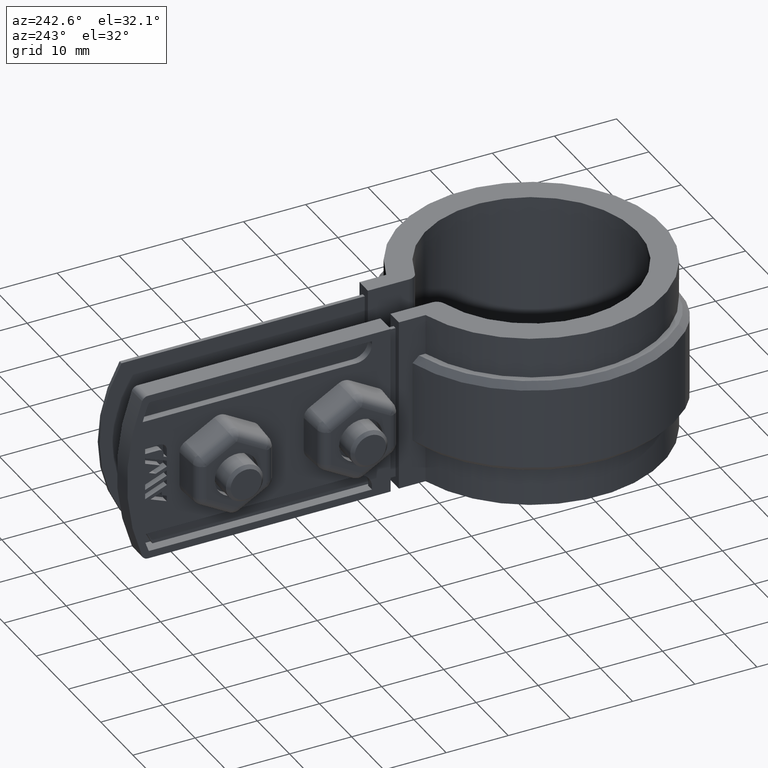
[diagram: clean part render]
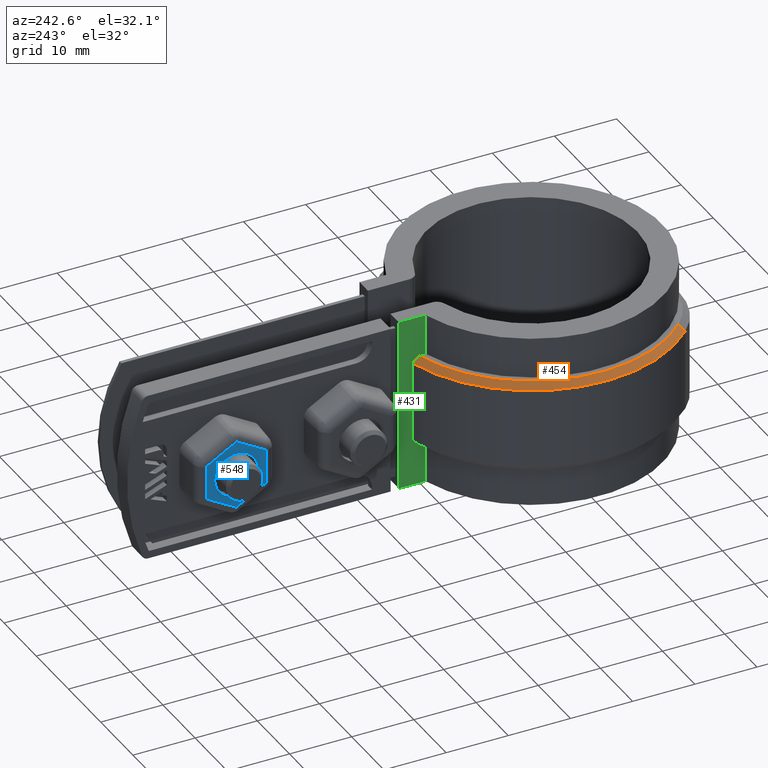
[diagram: same view with three faces highlighted in distinct colors, each labeled with its STEP entity id]
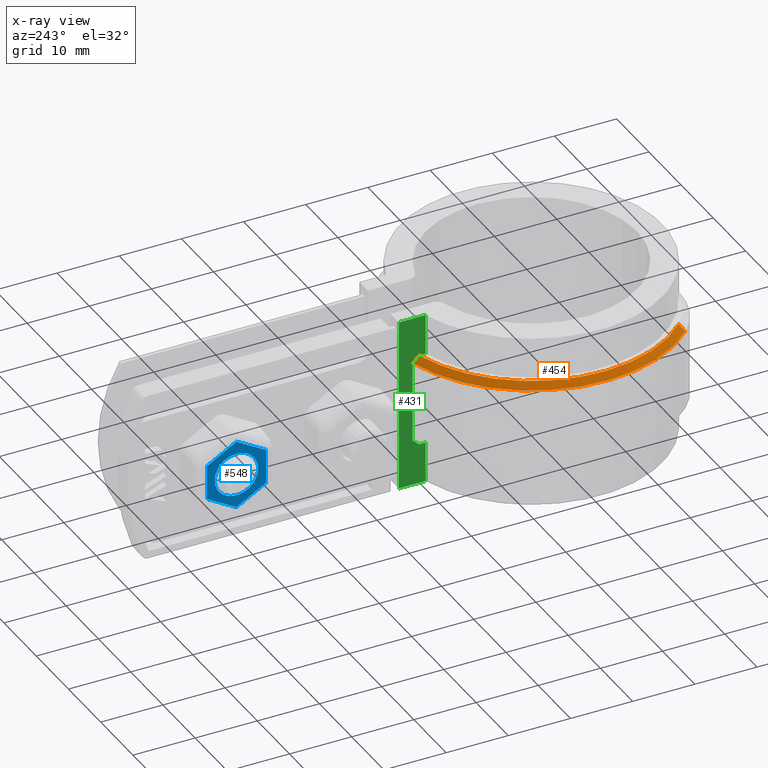
[diagram: x-ray of the same camera — body ghosted, the three highlighted faces saturated]
A machine part, auxiliary view with three faces highlighted in distinct colors.
The next image is the same camera in x-ray (body ghosted, the three faces saturated) — at least one of them is partly hidden behind the body in this view.
Their STEP definitions:

[orange] entity #454 — the highlighted conical surface has half-angle 45 deg.
#454 = ADVANCED_FACE( '', ( #903 ), #904, .T. );
#903 = FACE_OUTER_BOUND( '', #1931, .T. );
#904 = CONICAL_SURFACE( '', #1932, 22.0950000000000, 0.785398163397447 );
#1931 = EDGE_LOOP( '', ( #4328, #4329, #4330, #4331 ) );
#1932 = AXIS2_PLACEMENT_3D( '', #4332, #4333, #4334 );
#4328 = ORIENTED_EDGE( '', *, *, #6849, .F. );
#4329 = ORIENTED_EDGE( '', *, *, #6914, .F. );
#4330 = ORIENTED_EDGE( '', *, *, #6915, .F. );
#4331 = ORIENTED_EDGE( '', *, *, #6885, .F. );
#4332 = CARTESIAN_POINT( '', ( -8.67361737988404E-016, -6.93889390390723E-015, -5.00000000000000 ) );
#4333 = DIRECTION( '', ( 0.000000000000000, 0.000000000000000, -1.00000000000000 ) );
#4334 = DIRECTION( '', ( -1.00000000000000, 0.000000000000000, 0.000000000000000 ) );
#6849 = EDGE_CURVE( '', #7969, #7971, #7972, .F. );
#6885 = EDGE_CURVE( '', #7971, #8028, #8029, .F. );
#6914 = EDGE_CURVE( '', #7813, #7969, #8072, .T. );
#6915 = EDGE_CURVE( '', #8028, #7813, #8073, .T. );
#7813 = VERTEX_POINT( '', #10352 );
#7969 = VERTEX_POINT( '', #10809 );
#7971 = VERTEX_POINT( '', #10812 );
#7972 = B_SPLINE_CURVE_WITH_KNOTS( '', 3, ( #10813, #10814, #10815, #10816 ), .UNSPECIFIED., .F., .F., ( 4, 4 ), ( 707.130334014855, 707.131788933458 ), .UNSPECIFIED. );
#8028 = VERTEX_POINT( '', #10928 );
#8029 = CIRCLE( '', #10929, 22.0950000000000 );
#8072 = CIRCLE( '', #11145, 23.0950000000000 );
#8073 = LINE( '', #11146, #11147 );
#10352 = CARTESIAN_POINT( '', ( -16.4128629004502, -16.2479831490258, -6.00000000000000 ) );
#10809 = CARTESIAN_POINT( '', ( -6.10000000000003, 22.2748518513592, -6.00000000000000 ) );
#10812 = CARTESIAN_POINT( '', ( -6.10000000000003, 21.2362667387655, -5.00000000000000 ) );
#10813 = CARTESIAN_POINT( '', ( -6.10000000000003, 21.2362667387879, -5.00000000002154 ) );
#10814 = CARTESIAN_POINT( '', ( -6.10000000000003, 21.5827481550321, -5.33301524217526 ) );
#10815 = CARTESIAN_POINT( '', ( -6.10000000000003, 21.9289303497824, -5.66636284044930 ) );
#10816 = CARTESIAN_POINT( '', ( -6.10000000000003, 22.2748518513817, -6.00000000002171 ) );
#10928 = CARTESIAN_POINT( '', ( -15.7021955308702, -15.5444549763033, -5.00000000000000 ) );
#10929 = AXIS2_PLACEMENT_3D( '', #13076, #13077, #13078 );
#11145 = AXIS2_PLACEMENT_3D( '', #13106, #13107, #13108 );
#11146 = CARTESIAN_POINT( '', ( -15.7021955308702, -15.5444549763033, -5.00000000000000 ) );
#11147 = VECTOR( '', #13109, 1000.00000000000 );
#13076 = CARTESIAN_POINT( '', ( -8.67361737988404E-016, -6.93889390390723E-015, -5.00000000000000 ) );
#13077 = DIRECTION( '', ( 0.000000000000000, 0.000000000000000, -1.00000000000000 ) );
#13078 = DIRECTION( '', ( -1.00000000000000, 0.000000000000000, 0.000000000000000 ) );
#13106 = CARTESIAN_POINT( '', ( -8.67361737988404E-016, -6.93889390390723E-015, -6.00000000000000 ) );
#13107 = DIRECTION( '', ( 0.000000000000000, 0.000000000000000, -1.00000000000000 ) );
#13108 = DIRECTION( '', ( -1.00000000000000, 0.000000000000000, 0.000000000000000 ) );
#13109 = DIRECTION( '', ( -0.502517716198026, -0.497469541687849, -0.707106781186549 ) );

[blue] entity #548 — the highlighted planar face has unit normal (-1, -0, 0).
#548 = ADVANCED_FACE( '', ( #1109, #1110 ), #1111, .T. );
#1109 = FACE_OUTER_BOUND( '', #2365, .T. );
#1110 = FACE_BOUND( '', #2366, .T. );
#1111 = PLANE( '', #2367 );
#2365 = EDGE_LOOP( '', ( #5449, #5450, #5451, #5452, #5453, #5454, #5455, #5456, #5457, #5458, #5459, #5460 ) );
#2366 = EDGE_LOOP( '', ( #5461 ) );
#2367 = AXIS2_PLACEMENT_3D( '', #5462, #5463, #5464 );
#5449 = ORIENTED_EDGE( '', *, *, #7269, .T. );
#5450 = ORIENTED_EDGE( '', *, *, #7270, .T. );
#5451 = ORIENTED_EDGE( '', *, *, #7160, .T. );
#5452 = ORIENTED_EDGE( '', *, *, #7213, .T. );
#5453 = ORIENTED_EDGE( '', *, *, #7271, .T. );
#5454 = ORIENTED_EDGE( '', *, *, #7192, .T. );
#5455 = ORIENTED_EDGE( '', *, *, #7272, .T. );
#5456 = ORIENTED_EDGE( '', *, *, #7273, .T. );
#5457 = ORIENTED_EDGE( '', *, *, #7274, .T. );
#5458 = ORIENTED_EDGE( '', *, *, #7275, .T. );
#5459 = ORIENTED_EDGE( '', *, *, #7276, .T. );
#5460 = ORIENTED_EDGE( '', *, *, #7186, .T. );
#5461 = ORIENTED_EDGE( '', *, *, #7277, .T. );
#5462 = CARTESIAN_POINT( '', ( -11.9000000000000, 58.3043584449256, -15.2135462651899 ) );
#5463 = DIRECTION( '', ( -1.00000000000000, -5.21622357984566E-016, 4.64857589325129E-017 ) );
#5464 = DIRECTION( '', ( -5.21622357984566E-016, 1.00000000000000, 0.000000000000000 ) );
#7160 = EDGE_CURVE( '', #8520, #8518, #8521, .T. );
#7186 = EDGE_CURVE( '', #8550, #8555, #8557, .T. );
#7192 = EDGE_CURVE( '', #8565, #8563, #8566, .T. );
#7213 = EDGE_CURVE( '', #8518, #8594, #8596, .T. );
#7269 = EDGE_CURVE( '', #8555, #8683, #8684, .T. );
#7270 = EDGE_CURVE( '', #8683, #8520, #8685, .T. );
#7271 = EDGE_CURVE( '', #8594, #8565, #8686, .T. );
#7272 = EDGE_CURVE( '', #8563, #8687, #8688, .T. );
#7273 = EDGE_CURVE( '', #8687, #8689, #8690, .T. );
#7274 = EDGE_CURVE( '', #8689, #8691, #8692, .T. );
#7275 = EDGE_CURVE( '', #8691, #8693, #8694, .T. );
#7276 = EDGE_CURVE( '', #8693, #8550, #8695, .T. );
#7277 = EDGE_CURVE( '', #8696, #8696, #8697, .T. );
#8518 = VERTEX_POINT( '', #11894 );
#8520 = VERTEX_POINT( '', #11896 );
#8521 = CIRCLE( '', #11897, 0.0765531499276852 );
#8550 = VERTEX_POINT( '', #11943 );
#8555 = VERTEX_POINT( '', #11949 );
#8557 = LINE( '', #11951, #11952 );
#8563 = VERTEX_POINT( '', #11962 );
#8565 = VERTEX_POINT( '', #11964 );
#8566 = LINE( '', #11965, #11966 );
#8594 = VERTEX_POINT( '', #12007 );
#8596 = LINE( '', #12009, #12010 );
#8683 = VERTEX_POINT( '', #12134 );
#8684 = CIRCLE( '', #12135, 0.0765531499276742 );
#8685 = LINE( '', #12136, #12137 );
#8686 = CIRCLE( '', #12138, 0.0765531499276820 );
#8687 = VERTEX_POINT( '', #12139 );
#8688 = CIRCLE( '', #12140, 0.0765531499276767 );
#8689 = VERTEX_POINT( '', #12141 );
#8690 = LINE( '', #12142, #12143 );
#8691 = VERTEX_POINT( '', #12144 );
#8692 = CIRCLE( '', #12145, 0.0765531499276752 );
#8693 = VERTEX_POINT( '', #12146 );
#8694 = LINE( '', #12147, #12148 );
#8695 = CIRCLE( '', #12149, 0.0765531499276886 );
#8696 = VERTEX_POINT( '', #12150 );
#8697 = CIRCLE( '', #12151, 3.50000000000000 );
#11894 = CARTESIAN_POINT( '', ( -11.9000000000000, 48.8278052949980, -15.2135462651899 ) );
#11896 = CARTESIAN_POINT( '', ( -11.9000000000000, 48.8660818699618, -15.2798432377670 ) );
#11897 = AXIS2_PLACEMENT_3D( '', #13428, #13429, #13430 );
#11943 = CARTESIAN_POINT( '', ( -11.9000000000000, 58.3426350198895, -15.2798432377670 ) );
#11949 = CARTESIAN_POINT( '', ( -11.9000000000000, 53.6426350198895, -17.9933895029583 ) );
#11951 = CARTESIAN_POINT( '', ( -11.9000000000000, 58.3426350198895, -15.2798432377670 ) );
#11952 = VECTOR( '', #13470, 1000.00000000000 );
#11962 = CARTESIAN_POINT( '', ( -11.9000000000000, 53.5660818699618, -7.00661049703913 ) );
#11964 = CARTESIAN_POINT( '', ( -11.9000000000000, 48.8660818699618, -9.72015676223037 ) );
#11965 = CARTESIAN_POINT( '', ( -11.9000000000000, 53.5660818699618, -7.00661049703913 ) );
#11966 = VECTOR( '', #13478, 1000.00000000000 );
#12007 = CARTESIAN_POINT( '', ( -11.9000000000000, 48.8278052949980, -9.78645373480746 ) );
#12009 = CARTESIAN_POINT( '', ( -11.9000000000000, 48.8278052949980, -15.2135462651899 ) );
#12010 = VECTOR( '', #13513, 1000.00000000000 );
#12134 = CARTESIAN_POINT( '', ( -11.9000000000000, 53.5660818699618, -17.9933895029583 ) );
#12135 = AXIS2_PLACEMENT_3D( '', #13605, #13606, #13607 );
#12136 = CARTESIAN_POINT( '', ( -11.9000000000000, 55.9160818699618, -19.3501626355539 ) );
#12137 = VECTOR( '', #13608, 1000.00000000000 );
#12138 = AXIS2_PLACEMENT_3D( '', #13609, #13610, #13611 );
#12139 = CARTESIAN_POINT( '', ( -11.9000000000000, 53.6426350198895, -7.00661049703914 ) );
#12140 = AXIS2_PLACEMENT_3D( '', #13612, #13613, #13614 );
#12141 = CARTESIAN_POINT( '', ( -11.9000000000000, 58.3426350198895, -9.72015676223037 ) );
#12142 = CARTESIAN_POINT( '', ( -11.9000000000000, 60.6926350198895, -11.0769298948260 ) );
#12143 = VECTOR( '', #13615, 1000.00000000000 );
#12144 = CARTESIAN_POINT( '', ( -11.9000000000000, 58.3809115948533, -9.78645373480746 ) );
#12145 = AXIS2_PLACEMENT_3D( '', #13616, #13617, #13618 );
#12146 = CARTESIAN_POINT( '', ( -11.9000000000000, 58.3809115948533, -15.2135462651899 ) );
#12147 = CARTESIAN_POINT( '', ( -11.9000000000000, 58.3809115948533, -15.2135462651899 ) );
#12148 = VECTOR( '', #13619, 1000.00000000000 );
#12149 = AXIS2_PLACEMENT_3D( '', #13620, #13621, #13622 );
#12150 = CARTESIAN_POINT( '', ( -11.9000000000000, 50.1043584449256, -12.4999999999987 ) );
#12151 = AXIS2_PLACEMENT_3D( '', #13623, #13624, #13625 );
#13428 = CARTESIAN_POINT( '', ( -11.9000000000000, 48.9043584449256, -15.2135462651899 ) );
#13429 = DIRECTION( '', ( -1.00000000000000, -5.21622357984566E-016, 4.64857589325129E-017 ) );
#13430 = DIRECTION( '', ( 5.21622357984566E-016, -1.00000000000000, 0.000000000000000 ) );
#13470 = DIRECTION( '', ( 4.28495333730318E-016, -0.866025403784439, -0.500000000000000 ) );
#13478 = DIRECTION( '', ( -4.28495333730318E-016, 0.866025403784439, 0.500000000000000 ) );
#13513 = DIRECTION( '', ( 4.64857589325129E-017, -5.79473666251976E-017, 1.00000000000000 ) );
#13605 = CARTESIAN_POINT( '', ( -11.9000000000000, 53.6043584449256, -17.9270925303812 ) );
#13606 = DIRECTION( '', ( -1.00000000000000, -5.21622357984566E-016, 4.64857589325129E-017 ) );
#13607 = DIRECTION( '', ( 5.21622357984566E-016, -1.00000000000000, 0.000000000000000 ) );
#13608 = DIRECTION( '', ( 4.74981092662831E-016, -0.866025403784439, 0.499999999999999 ) );
#13609 = CARTESIAN_POINT( '', ( -11.9000000000000, 48.9043584449256, -9.78645373480746 ) );
#13610 = DIRECTION( '', ( -1.00000000000000, -5.21622357984566E-016, 4.64857589325129E-017 ) );
#13611 = DIRECTION( '', ( 5.21622357984566E-016, -1.00000000000000, 0.000000000000000 ) );
#13612 = CARTESIAN_POINT( '', ( -11.9000000000000, 53.6043584449256, -7.07290746961622 ) );
#13613 = DIRECTION( '', ( -1.00000000000000, -5.21622357984566E-016, 4.64857589325129E-017 ) );
#13614 = DIRECTION( '', ( 5.21622357984566E-016, -1.00000000000000, 0.000000000000000 ) );
#13615 = DIRECTION( '', ( -4.74981092662831E-016, 0.866025403784439, -0.499999999999999 ) );
#13616 = CARTESIAN_POINT( '', ( -11.9000000000000, 58.3043584449257, -9.78645373480746 ) );
#13617 = DIRECTION( '', ( -1.00000000000000, -5.21622357984566E-016, 4.64857589325129E-017 ) );
#13618 = DIRECTION( '', ( 5.21622357984566E-016, -1.00000000000000, 0.000000000000000 ) );
#13619 = DIRECTION( '', ( -4.64857589325132E-017, 5.52675296918638E-016, -1.00000000000000 ) );
#13620 = CARTESIAN_POINT( '', ( -11.9000000000000, 58.3043584449256, -15.2135462651899 ) );
#13621 = DIRECTION( '', ( -1.00000000000000, -5.21622357984566E-016, 4.64857589325129E-017 ) );
#13622 = DIRECTION( '', ( 5.21622357984566E-016, -1.00000000000000, 0.000000000000000 ) );
#13623 = CARTESIAN_POINT( '', ( -11.9000000000000, 53.6043584449256, -12.4999999999987 ) );
#13624 = DIRECTION( '', ( 1.00000000000000, 5.21622357984566E-016, -4.64857589325129E-017 ) );
#13625 = DIRECTION( '', ( 5.21622357984566E-016, -1.00000000000000, 9.16769946784696E-048 ) );

[green] entity #431 — the highlighted planar face has unit normal (-1, 0, 0).
#431 = ADVANCED_FACE( '', ( #857 ), #858, .T. );
#857 = FACE_OUTER_BOUND( '', #1885, .T. );
#858 = PLANE( '', #1886 );
#1885 = EDGE_LOOP( '', ( #3909, #3910, #3911, #3912, #3913, #3914, #3915, #3916, #3917, #3918 ) );
#1886 = AXIS2_PLACEMENT_3D( '', #3919, #3920, #3921 );
#3909 = ORIENTED_EDGE( '', *, *, #6846, .T. );
#3910 = ORIENTED_EDGE( '', *, *, #6847, .T. );
#3911 = ORIENTED_EDGE( '', *, *, #6848, .T. );
#3912 = ORIENTED_EDGE( '', *, *, #6849, .T. );
#3913 = ORIENTED_EDGE( '', *, *, #6850, .F. );
#3914 = ORIENTED_EDGE( '', *, *, #6851, .T. );
#3915 = ORIENTED_EDGE( '', *, *, #6852, .F. );
#3916 = ORIENTED_EDGE( '', *, *, #6853, .F. );
#3917 = ORIENTED_EDGE( '', *, *, #6831, .T. );
#3918 = ORIENTED_EDGE( '', *, *, #6854, .T. );
#3919 = CARTESIAN_POINT( '', ( -6.10000000000003, 24.4800000000000, -26.5000000000000 ) );
#3920 = DIRECTION( '', ( -1.00000000000000, 6.50521303491303E-017, 0.000000000000000 ) );
#3921 = DIRECTION( '', ( 0.000000000000000, 0.000000000000000, 1.00000000000000 ) );
#6831 = EDGE_CURVE( '', #7938, #7936, #7939, .F. );
#6846 = EDGE_CURVE( '', #7964, #7965, #7966, .F. );
#6847 = EDGE_CURVE( '', #7965, #7967, #7968, .F. );
#6848 = EDGE_CURVE( '', #7967, #7969, #7970, .T. );
#6849 = EDGE_CURVE( '', #7969, #7971, #7972, .F. );
#6850 = EDGE_CURVE( '', #7973, #7971, #7974, .T. );
#6851 = EDGE_CURVE( '', #7973, #7975, #7976, .T. );
#6852 = EDGE_CURVE( '', #7977, #7975, #7978, .T. );
#6853 = EDGE_CURVE( '', #7938, #7977, #7979, .T. );
#6854 = EDGE_CURVE( '', #7936, #7964, #7980, .T. );
#7936 = VERTEX_POINT( '', #10758 );
#7938 = VERTEX_POINT( '', #10760 );
#7939 = LINE( '', #10761, #10762 );
#7964 = VERTEX_POINT( '', #10800 );
#7965 = VERTEX_POINT( '', #10801 );
#7966 = LINE( '', #10802, #10803 );
#7967 = VERTEX_POINT( '', #10804 );
#7968 = B_SPLINE_CURVE_WITH_KNOTS( '', 3, ( #10805, #10806, #10807, #10808 ), .UNSPECIFIED., .F., .F., ( 4, 4 ), ( 707.074701658094, 707.076143413959 ), .UNSPECIFIED. );
#7969 = VERTEX_POINT( '', #10809 );
#7970 = LINE( '', #10810, #10811 );
#7971 = VERTEX_POINT( '', #10812 );
#7972 = B_SPLINE_CURVE_WITH_KNOTS( '', 3, ( #10813, #10814, #10815, #10816 ), .UNSPECIFIED., .F., .F., ( 4, 4 ), ( 707.130334014855, 707.131788933458 ), .UNSPECIFIED. );
#7973 = VERTEX_POINT( '', #10817 );
#7974 = LINE( '', #10818, #10819 );
#7975 = VERTEX_POINT( '', #10820 );
#7976 = LINE( '', #10821, #10822 );
#7977 = VERTEX_POINT( '', #10823 );
#7978 = LINE( '', #10824, #10825 );
#7979 = LINE( '', #10826, #10827 );
#7980 = LINE( '', #10828, #10829 );
#10758 = CARTESIAN_POINT( '', ( -6.10000000000003, 20.1937867919813, -26.5000000000000 ) );
#10760 = CARTESIAN_POINT( '', ( -6.10000000000003, 24.4800000000000, -26.5000000000000 ) );
#10761 = CARTESIAN_POINT( '', ( -6.10000000000003, 24.4800000000000, -26.5000000000000 ) );
#10762 = VECTOR( '', #13003, 1000.00000000000 );
#10800 = CARTESIAN_POINT( '', ( -6.10000000000003, 20.1937867919813, -20.0000000000000 ) );
#10801 = CARTESIAN_POINT( '', ( -6.10000000000003, 21.2362667387655, -20.0000000000000 ) );
#10802 = CARTESIAN_POINT( '', ( -6.10000000000003, 24.4800000000000, -20.0000000000000 ) );
#10803 = VECTOR( '', #13027, 1000.00000000000 );
#10804 = CARTESIAN_POINT( '', ( -6.10000000000003, 22.2748518513592, -19.0000000000000 ) );
#10805 = CARTESIAN_POINT( '', ( -6.10000000000003, 22.2748518513633, -18.9999999999960 ) );
#10806 = CARTESIAN_POINT( '', ( -6.10000000000003, 21.9289381047444, -19.3336296799824 ) );
#10807 = CARTESIAN_POINT( '', ( -6.10000000000003, 21.5827562876147, -19.6669769413190 ) );
#10808 = CARTESIAN_POINT( '', ( -6.10000000000003, 21.2362667387752, -19.9999999999907 ) );
#10809 = CARTESIAN_POINT( '', ( -6.10000000000003, 22.2748518513592, -6.00000000000000 ) );
#10810 = CARTESIAN_POINT( '', ( -6.10000000000003, 22.2748518513592, -20.0000000000000 ) );
#10811 = VECTOR( '', #13028, 1000.00000000000 );
#10812 = CARTESIAN_POINT( '', ( -6.10000000000003, 21.2362667387655, -5.00000000000000 ) );
#10813 = CARTESIAN_POINT( '', ( -6.10000000000003, 21.2362667387879, -5.00000000002154 ) );
#10814 = CARTESIAN_POINT( '', ( -6.10000000000003, 21.5827481550321, -5.33301524217526 ) );
#10815 = CARTESIAN_POINT( '', ( -6.10000000000003, 21.9289303497824, -5.66636284044930 ) );
#10816 = CARTESIAN_POINT( '', ( -6.10000000000003, 22.2748518513817, -6.00000000002171 ) );
#10817 = CARTESIAN_POINT( '', ( -6.10000000000003, 20.1937867919813, -5.00000000000000 ) );
#10818 = CARTESIAN_POINT( '', ( -6.10000000000003, -6.54207590877753E-015, -5.00000000000000 ) );
#10819 = VECTOR( '', #13029, 1000.00000000000 );
#10820 = CARTESIAN_POINT( '', ( -6.10000000000003, 20.1937867919813, 1.50000000000000 ) );
#10821 = CARTESIAN_POINT( '', ( -6.10000000000003, 20.1937867919813, -26.5000000000000 ) );
#10822 = VECTOR( '', #13030, 1000.00000000000 );
#10823 = CARTESIAN_POINT( '', ( -6.10000000000003, 24.4800000000000, 1.50000000000000 ) );
#10824 = CARTESIAN_POINT( '', ( -6.10000000000003, 3.96817995129697E-016, 1.50000000000000 ) );
#10825 = VECTOR( '', #13031, 1000.00000000000 );
#10826 = CARTESIAN_POINT( '', ( -6.10000000000003, 24.4800000000000, -26.5000000000000 ) );
#10827 = VECTOR( '', #13032, 1000.00000000000 );
#10828 = CARTESIAN_POINT( '', ( -6.10000000000003, 20.1937867919813, -26.5000000000000 ) );
#10829 = VECTOR( '', #13033, 1000.00000000000 );
#13003 = DIRECTION( '', ( 6.50521303491303E-017, 1.00000000000000, 0.000000000000000 ) );
#13027 = DIRECTION( '', ( -6.50521303491303E-017, -1.00000000000000, 0.000000000000000 ) );
#13028 = DIRECTION( '', ( 0.000000000000000, 0.000000000000000, 1.00000000000000 ) );
#13029 = DIRECTION( '', ( 6.50521303491303E-017, 1.00000000000000, 0.000000000000000 ) );
#13030 = DIRECTION( '', ( 0.000000000000000, 0.000000000000000, 1.00000000000000 ) );
#13031 = DIRECTION( '', ( -6.50521303491303E-017, -1.00000000000000, 0.000000000000000 ) );
#13032 = DIRECTION( '', ( -3.95332422871144E-080, -6.07716335728626E-064, 1.00000000000000 ) );
#13033 = DIRECTION( '', ( 0.000000000000000, 0.000000000000000, 1.00000000000000 ) );